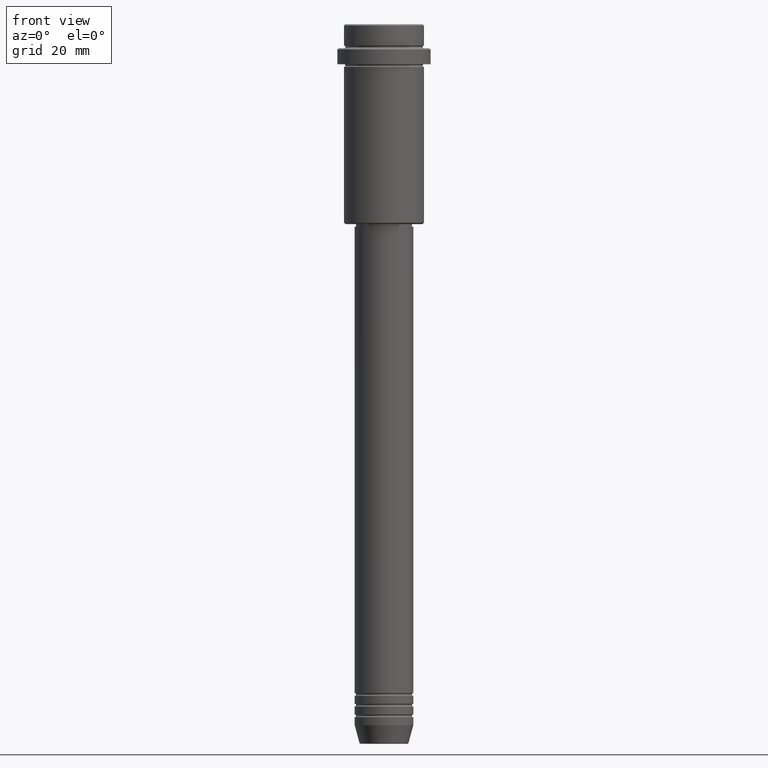
[diagram: clean part render]
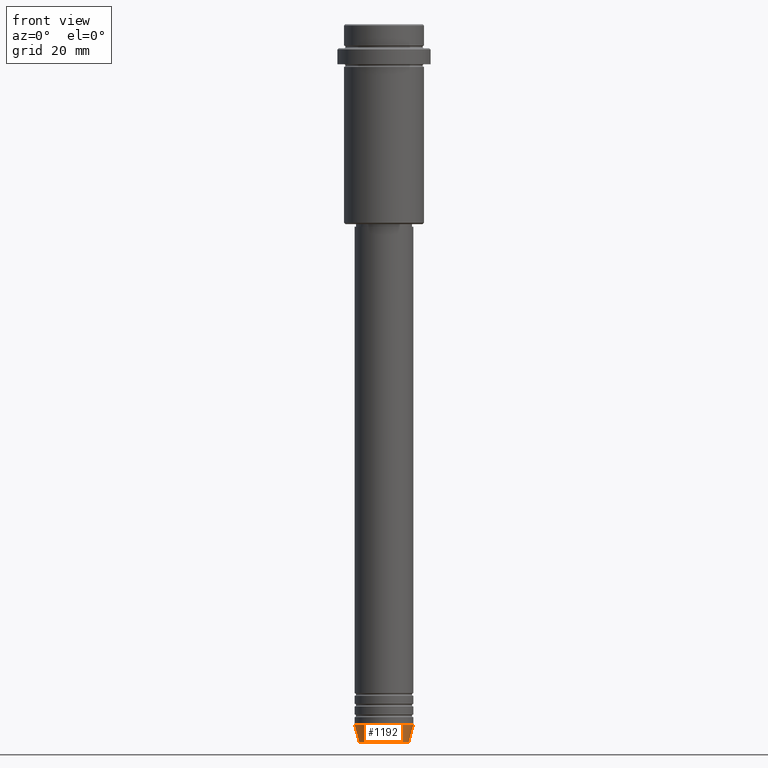
[diagram: same view with one face highlighted and labeled with its STEP entity id]
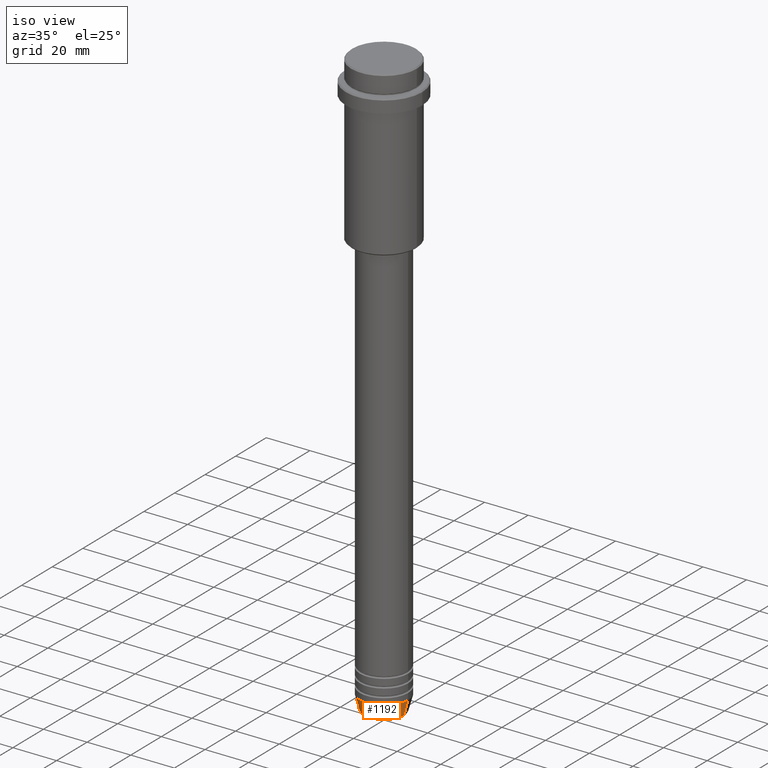
[diagram: same view with one face highlighted and labeled with its STEP entity id]
A machine part, front view. The second image highlights one B-rep face of the part: STEP entity #1192.
A second angle (iso view) of the same face is appended — the face is thin or edge-on in the first view.
In plain terms, the highlighted conical surface has half-angle 15 deg.
Its self-contained STEP definition (entity closure, byte-faithful):
#10 = AXIS2_PLACEMENT_3D ( 'NONE', #633, #1057, #64 ) ;
#34 = LINE ( 'NONE', #263, #584 ) ;
#41 = ORIENTED_EDGE ( 'NONE', *, *, #439, .F. ) ;
#60 = ORIENTED_EDGE ( 'NONE', *, *, #516, .T. ) ;
#64 = DIRECTION ( 'NONE',  ( 1.000000000000000000, 0.000000000000000000, 0.000000000000000000 ) ) ;
#73 = EDGE_CURVE ( 'NONE', #458, #603, #652, .T. ) ;
#152 = CIRCLE ( 'NONE', #613, 11.00000000000000000 ) ;
#235 = CARTESIAN_POINT ( 'NONE',  ( 0.000000000000000000, 0.000000000000000000, -269.6294095225512706 ) ) ;
#238 = CARTESIAN_POINT ( 'NONE',  ( -9.223655072137189492, 1.238341722557647202E-15, -269.6294095225512706 ) ) ;
#260 = ORIENTED_EDGE ( 'NONE', *, *, #73, .F. ) ;
#263 = CARTESIAN_POINT ( 'NONE',  ( 11.00000000000000000, 0.000000000000000000, -263.0000000000000000 ) ) ;
#298 = EDGE_CURVE ( 'NONE', #507, #1246, #34, .T. ) ;
#326 = CARTESIAN_POINT ( 'NONE',  ( -11.00000000000000000, 1.347111479062088405E-15, -263.0000000000000000 ) ) ;
#339 = CARTESIAN_POINT ( 'NONE',  ( 11.00000000000000000, 0.000000000000000000, -263.0000000000000000 ) ) ;
#355 = DIRECTION ( 'NONE',  ( 1.000000000000000000, 0.000000000000000000, 0.000000000000000000 ) ) ;
#426 = VECTOR ( 'NONE', #904, 1000.000000000000000 ) ;
#439 = EDGE_CURVE ( 'NONE', #603, #1246, #152, .T. ) ;
#458 = VERTEX_POINT ( 'NONE', #238 ) ;
#473 = DIRECTION ( 'NONE',  ( 0.2588190451025213501, 0.000000000000000000, 0.9659258262890680902 ) ) ;
#507 = VERTEX_POINT ( 'NONE', #775 ) ;
#516 = EDGE_CURVE ( 'NONE', #458, #507, #1087, .T. ) ;
#584 = VECTOR ( 'NONE', #473, 1000.000000000000000 ) ;
#603 = VERTEX_POINT ( 'NONE', #326 ) ;
#613 = AXIS2_PLACEMENT_3D ( 'NONE', #641, #1282, #755 ) ;
#633 = CARTESIAN_POINT ( 'NONE',  ( 0.000000000000000000, 0.000000000000000000, -263.0000000000000000 ) ) ;
#641 = CARTESIAN_POINT ( 'NONE',  ( 0.000000000000000000, 0.000000000000000000, -263.0000000000000000 ) ) ;
#652 = LINE ( 'NONE', #1220, #426 ) ;
#657 = CONICAL_SURFACE ( 'NONE', #10, 11.00000000000000000, 0.2617993877991500740 ) ;
#739 = FACE_OUTER_BOUND ( 'NONE', #1042, .T. ) ;
#755 = DIRECTION ( 'NONE',  ( 1.000000000000000000, 0.000000000000000000, 0.000000000000000000 ) ) ;
#775 = CARTESIAN_POINT ( 'NONE',  ( 9.223655072137189492, 0.000000000000000000, -269.6294095225512706 ) ) ;
#890 = DIRECTION ( 'NONE',  ( -0.000000000000000000, -0.000000000000000000, 1.000000000000000000 ) ) ;
#904 = DIRECTION ( 'NONE',  ( -0.2588190451025213501, 3.169619151431772337E-17, 0.9659258262890680902 ) ) ;
#1042 = EDGE_LOOP ( 'NONE', ( #260, #60, #1092, #41 ) ) ;
#1057 = DIRECTION ( 'NONE',  ( -0.000000000000000000, -0.000000000000000000, 1.000000000000000000 ) ) ;
#1087 = CIRCLE ( 'NONE', #1277, 9.223655072137189492 ) ;
#1092 = ORIENTED_EDGE ( 'NONE', *, *, #298, .T. ) ;
#1192 = ADVANCED_FACE ( 'NONE', ( #739 ), #657, .T. ) ;
#1220 = CARTESIAN_POINT ( 'NONE',  ( -11.00000000000000000, 1.347111479062088405E-15, -263.0000000000000000 ) ) ;
#1246 = VERTEX_POINT ( 'NONE', #339 ) ;
#1277 = AXIS2_PLACEMENT_3D ( 'NONE', #235, #890, #355 ) ;
#1282 = DIRECTION ( 'NONE',  ( -0.000000000000000000, -0.000000000000000000, 1.000000000000000000 ) ) ;